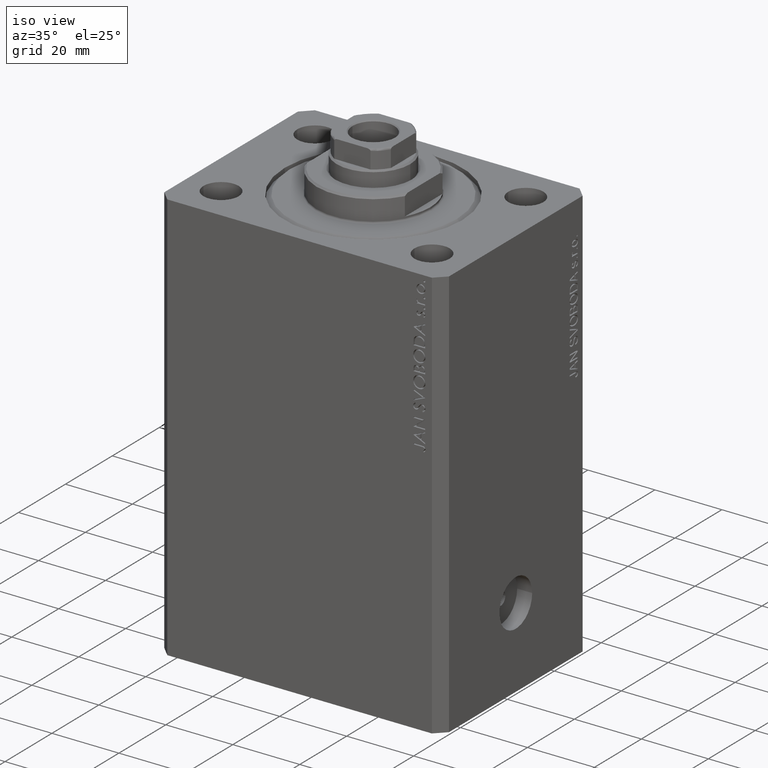
[diagram: clean part render]
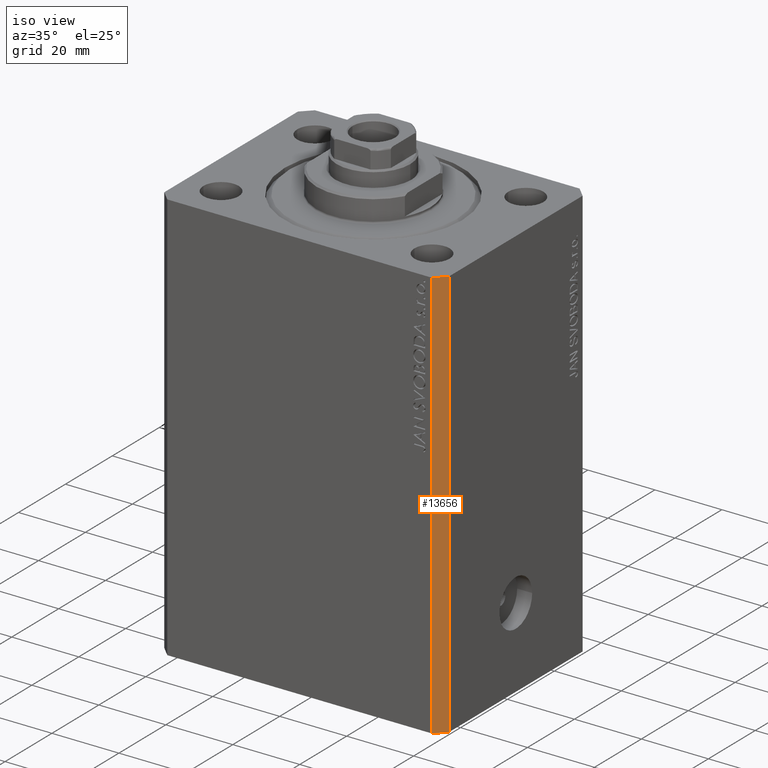
[diagram: same view with one face highlighted and labeled with its STEP entity id]
A machine part, iso view. The second image highlights one B-rep face of the part: STEP entity #13656.
In plain terms, the highlighted planar face has unit normal (0.7071, -0.7071, 0).
Its self-contained STEP definition (entity closure, byte-faithful):
#957 = CARTESIAN_POINT ( 'NONE',  ( 42.50000000000000711, -28.50000000000000355, 0.000000000000000000 ) ) ;
#1611 = DIRECTION ( 'NONE',  ( 0.7071067811865483499, 0.7071067811865466846, 0.000000000000000000 ) ) ;
#2412 = CARTESIAN_POINT ( 'NONE',  ( 39.50000000000000711, -31.50000000000000000, -123.0000000000000000 ) ) ;
#8282 = VECTOR ( 'NONE', #29312, 1000.000000000000000 ) ;
#9184 = DIRECTION ( 'NONE',  ( 0.000000000000000000, 0.000000000000000000, 1.000000000000000000 ) ) ;
#9355 = FACE_OUTER_BOUND ( 'NONE', #46396, .T. ) ;
#9391 = CARTESIAN_POINT ( 'NONE',  ( 42.50000000000000711, -28.50000000000000355, -123.0000000000000000 ) ) ;
#9880 = LINE ( 'NONE', #34766, #46296 ) ;
#10422 = EDGE_CURVE ( 'NONE', #34555, #27015, #41915, .T. ) ;
#11166 = EDGE_CURVE ( 'NONE', #27015, #35039, #14476, .T. ) ;
#13656 = ADVANCED_FACE ( 'NONE', ( #9355 ), #17227, .T. ) ;
#14476 = LINE ( 'NONE', #29075, #8282 ) ;
#17227 = PLANE ( 'NONE',  #36846 ) ;
#19634 = VERTEX_POINT ( 'NONE', #9391 ) ;
#19773 = LINE ( 'NONE', #34375, #21956 ) ;
#20119 = ORIENTED_EDGE ( 'NONE', *, *, #21960, .T. ) ;
#20865 = CARTESIAN_POINT ( 'NONE',  ( 39.50000000000000711, -31.50000000000000000, 0.000000000000000000 ) ) ;
#21956 = VECTOR ( 'NONE', #1611, 1000.000000000000000 ) ;
#21960 = EDGE_CURVE ( 'NONE', #19634, #35039, #9880, .T. ) ;
#27015 = VERTEX_POINT ( 'NONE', #20865 ) ;
#27602 = ORIENTED_EDGE ( 'NONE', *, *, #43482, .T. ) ;
#29075 = CARTESIAN_POINT ( 'NONE',  ( 39.50000000000000711, -31.50000000000000000, 0.000000000000000000 ) ) ;
#29312 = DIRECTION ( 'NONE',  ( 0.7071067811865483499, 0.7071067811865466846, 0.000000000000000000 ) ) ;
#30360 = ORIENTED_EDGE ( 'NONE', *, *, #10422, .F. ) ;
#31834 = DIRECTION ( 'NONE',  ( 0.7071067811865467956, -0.7071067811865483499, 0.000000000000000000 ) ) ;
#34375 = CARTESIAN_POINT ( 'NONE',  ( 39.50000000000000711, -31.50000000000000000, -123.0000000000000000 ) ) ;
#34555 = VERTEX_POINT ( 'NONE', #38368 ) ;
#34766 = CARTESIAN_POINT ( 'NONE',  ( 42.50000000000000711, -28.50000000000000355, -123.0000000000000000 ) ) ;
#35039 = VERTEX_POINT ( 'NONE', #957 ) ;
#35721 = ORIENTED_EDGE ( 'NONE', *, *, #11166, .F. ) ;
#36846 = AXIS2_PLACEMENT_3D ( 'NONE', #2412, #31834, #46454 ) ;
#38074 = DIRECTION ( 'NONE',  ( 0.000000000000000000, 0.000000000000000000, 1.000000000000000000 ) ) ;
#38368 = CARTESIAN_POINT ( 'NONE',  ( 39.50000000000000711, -31.50000000000000000, -123.0000000000000000 ) ) ;
#38543 = CARTESIAN_POINT ( 'NONE',  ( 39.50000000000000711, -31.50000000000000000, -123.0000000000000000 ) ) ;
#41884 = VECTOR ( 'NONE', #38074, 1000.000000000000000 ) ;
#41915 = LINE ( 'NONE', #38543, #41884 ) ;
#43482 = EDGE_CURVE ( 'NONE', #34555, #19634, #19773, .T. ) ;
#46296 = VECTOR ( 'NONE', #9184, 1000.000000000000000 ) ;
#46396 = EDGE_LOOP ( 'NONE', ( #35721, #30360, #27602, #20119 ) ) ;
#46454 = DIRECTION ( 'NONE',  ( 0.7071067811865483499, 0.7071067811865467956, 0.000000000000000000 ) ) ;